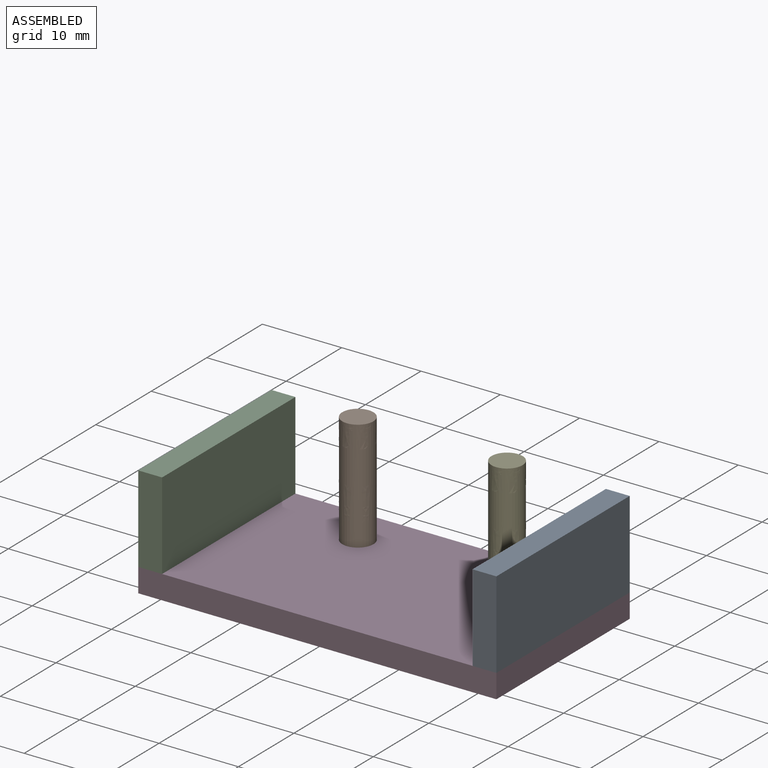
[diagram: assembled view]
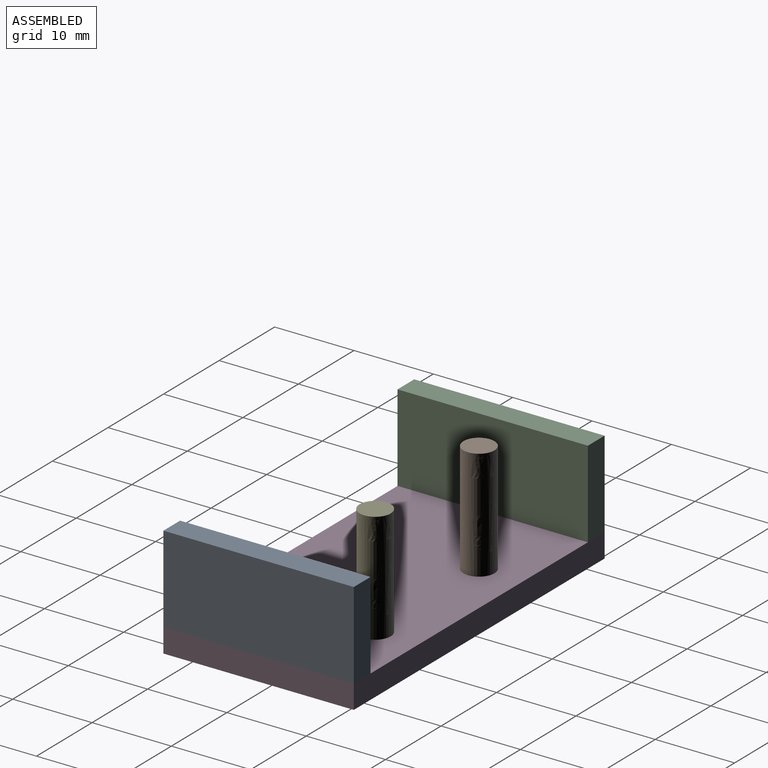
[diagram: assembled view, second angle]
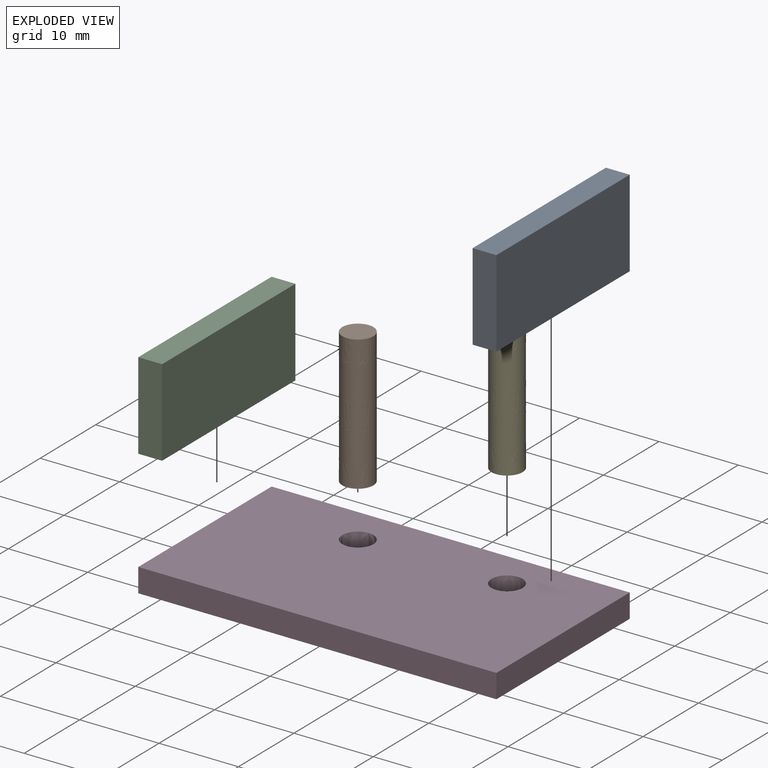
[diagram: exploded view]
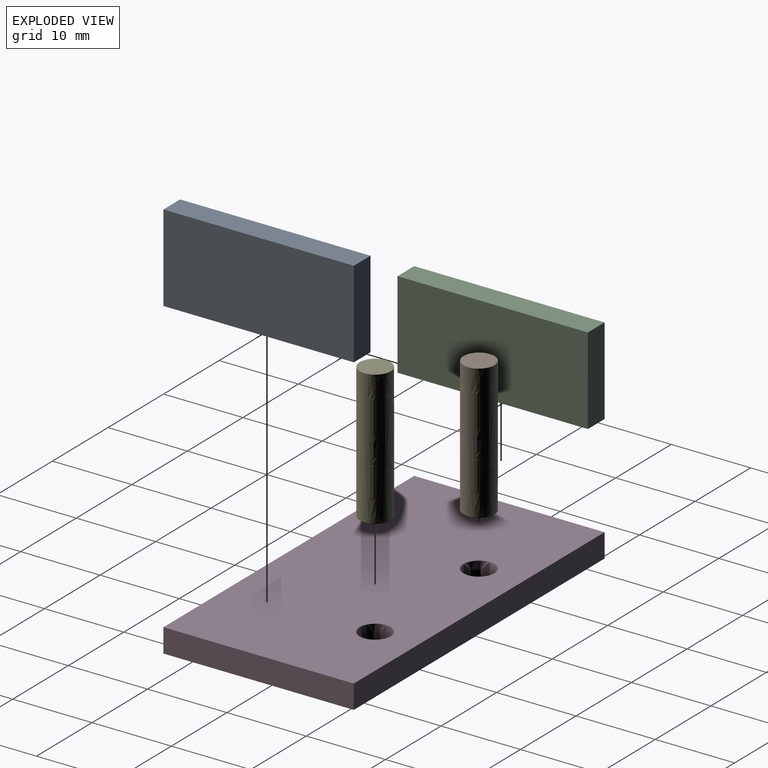
[diagram: exploded view, second angle]
ASSEMBLY  parts=5 mates=4
PART A: 6 faces, bbox 11x3x24 mm
  f0: plane 24x11mm, normal (0,1,0), area 264mm2, adj f1,f3,f4,f5
  f1: plane 11x3mm, normal (0,0,1), area 33mm2, adj f0,f2,f4,f5
  f2: plane 24x11mm, normal (0,-1,0), area 264mm2, adj f1,f3,f4,f5
  f3: plane 11x3mm, normal (0,0,-1), area 33mm2, adj f0,f2,f4,f5
  f4: plane 24x3mm, normal (1,0,0), area 72mm2, adj f0,f1,f2,f3
  f5: plane 24x3mm, normal (-1,0,0), area 72mm2, adj f0,f1,f2,f3
PART B: 8 faces, bbox 3.9x4x17 mm
  f0: extruded ~17x1.69mm, area 34.8mm2, adj f1,f5,f6,f7
  f1: extruded ~17x1.69mm, area 34.8mm2, adj f0,f2,f6,f7
  f2: extruded ~17x1.96mm, area 34.8mm2, adj f1,f3,f6,f7
  f3: extruded ~17x1.69mm, area 34.8mm2, adj f2,f4,f6,f7
  f4: extruded ~17x1.69mm, area 34.8mm2, adj f3,f5,f6,f7
  f5: extruded ~17x1.96mm, area 34.8mm2, adj f0,f4,f6,f7
  f6: plane 4x3.91mm, normal (0,0,1), area 12mm2, adj f0,f1,f2,f3,f4,f5
  f7: plane 4x3.91mm, normal (0,0,-1), area 12mm2, adj f0,f1,f2,f3,f4,f5
PART C: same geometry as A
PART D: 16 faces, bbox 45.1x24x3 mm
  f0: extruded ~3x1.7mm, area 6.2mm2, adj f1,f13,f14,f15
  f1: extruded ~3x1.7mm, area 6.2mm2, adj f0,f2,f14,f15
  f2: extruded ~3x1.96mm, area 6.2mm2, adj f1,f3,f14,f15
  f3: extruded ~3x1.7mm, area 6.2mm2, adj f2,f4,f14,f15
  f4: extruded ~3x1.7mm, area 6.2mm2, adj f3,f13,f14,f15
  f5: extruded ~3x1.96mm, area 9.2mm2, adj f6,f11,f14,f15
  f6: extruded ~3x1.96mm, area 9.2mm2, adj f5,f7,f14,f15
  f7: extruded ~3x1.96mm, area 9.2mm2, adj f6,f11,f14,f15
  f8: plane 24x3mm, normal (1,0,0), area 72mm2, adj f9,f12,f14,f15
  f9: plane 45.15x3mm, normal (0,1,0), area 135.4mm2, adj f8,f10,f14,f15
  f10: plane 24x3mm, normal (-1,0,0), area 72mm2, adj f9,f12,f14,f15
  f11: extruded ~3x1.96mm, area 9.2mm2, adj f5,f7,f14,f15
  f12: plane 45.15x3mm, normal (0,-1,0), area 135.4mm2, adj f8,f10,f14,f15
  f13: extruded ~3x1.96mm, area 6.2mm2, adj f0,f4,f14,f15
  f14: plane 45.15x24mm, normal (0,0,1), area 1059.4mm2, adj f0,f1,f2,f3,f4,f5,f6,f7
  f15: plane 45.15x24mm, normal (0,0,-1), area 1059.4mm2, adj f0,f1,f2,f3,f4,f5,f6,f7
PART E: same geometry as B
PLACE A rot(axis=(0.58,-0.58,0.58),120deg) t=(23.37,11.36,-2.7)mm
PLACE B rot(axis=(-0.33,0.94,0.08),0deg) t=(-7.04,5.84,-5.7)mm
PLACE C rot(axis=(0.58,-0.58,0.58),120deg) t=(-18.77,11.36,-2.7)mm
PLACE D rot(axis=(-0.33,0.94,0.08),0deg) t=(0.8,6.7,-5.7)mm
PLACE E rot(axis=(-0.33,0.94,0.08),0deg) t=(11.73,5.9,-5.7)mm
MATE fastened B.f7 <-> D.f15  axis (0,0,-1) through (-7.04,5.84,-5.7)mm
MATE fastened D.f14 <-> C.f5  axis (0,0,1) through (-21.77,11.36,-2.7)mm
MATE fastened E.f7 <-> D.f15  axis (0,0,-1) through (11.73,5.9,-5.7)mm
MATE fastened D.f14 <-> A.f5  axis (0,0,1) through (23.37,11.36,-2.7)mm
